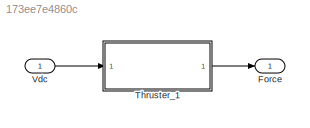
MODEL slx_173ee7e4860c
KIND model
CONFIG AbsTol = auto
CONFIG EnableMultiTasking = off
CONFIG FixedStep = auto
CONFIG MaxStep = auto
CONFIG MinStep = auto
CONFIG RelTol = 1e-3
CONFIG SampleTimeConstraint = Unconstrained
CONFIG Solver = FixedStepAuto
CONFIG SolverName = FixedStepAuto
CONFIG StartTime = 0.0
CONFIG StopTime = 10.0
BLOCK [Outport] Force
  IconDisplay = Port number
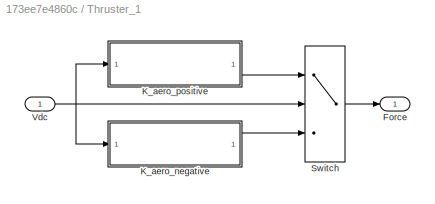
BLOCK [SubSystem] Thruster_1 
  Ports = [1, 1]
  RequestExecContextInheritance = off
BLOCK [Outport] Thruster_1 /Force
  IconDisplay = Port number
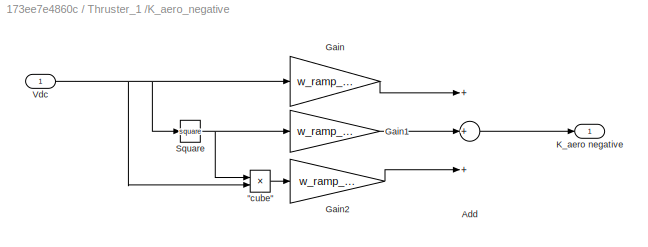
BLOCK [SubSystem] Thruster_1 /K_aero_negative
  Ports = [1, 1]
  RequestExecContextInheritance = off
BLOCK [Product] Thruster_1 /K_aero_negative/"cube"
  InputSameDT = off
  Inputs = **
  OutDataTypeStr = Inherit: Inherit via internal rule
  Ports = [2, 1]
  RndMeth = Floor
  SaturateOnIntegerOverflow = off
BLOCK [Sum] Thruster_1 /K_aero_negative/Add
  InputSameDT = off
  Inputs = +++
  OutDataTypeStr = Inherit: Inherit via internal rule
  Ports = [3, 1]
  SaturateOnIntegerOverflow = off
BLOCK [Gain] Thruster_1 /K_aero_negative/Gain
  Gain = w_ramp_1N(3)
  OutDataTypeStr = Inherit: Inherit via internal rule
  ParamDataTypeStr = Inherit: Inherit via internal rule
  SaturateOnIntegerOverflow = off
BLOCK [Gain] Thruster_1 /K_aero_negative/Gain1
  Gain = w_ramp_1N(2)
  OutDataTypeStr = Inherit: Inherit via internal rule
  ParamDataTypeStr = Inherit: Inherit via internal rule
  SaturateOnIntegerOverflow = off
BLOCK [Gain] Thruster_1 /K_aero_negative/Gain2
  Gain = w_ramp_1N(1)
  OutDataTypeStr = Inherit: Inherit via internal rule
  ParamDataTypeStr = Inherit: Inherit via internal rule
  SaturateOnIntegerOverflow = off
BLOCK [Outport] Thruster_1 /K_aero_negative/K_aero negative
  IconDisplay = Port number
BLOCK [Math] Thruster_1 /K_aero_negative/Square
  Operator = square
  Ports = [1, 1]
  SignedPower = off
BLOCK [Inport] Thruster_1 /K_aero_negative/Vdc
  IconDisplay = Port number
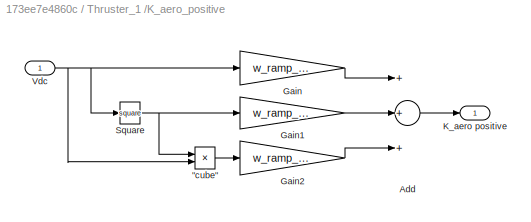
BLOCK [SubSystem] Thruster_1 /K_aero_positive
  Ports = [1, 1]
  RequestExecContextInheritance = off
BLOCK [Product] Thruster_1 /K_aero_positive/"cube"
  InputSameDT = off
  Inputs = **
  OutDataTypeStr = Inherit: Inherit via internal rule
  Ports = [2, 1]
  RndMeth = Floor
  SaturateOnIntegerOverflow = off
BLOCK [Sum] Thruster_1 /K_aero_positive/Add
  InputSameDT = off
  Inputs = +++
  OutDataTypeStr = Inherit: Inherit via internal rule
  Ports = [3, 1]
  SaturateOnIntegerOverflow = off
BLOCK [Gain] Thruster_1 /K_aero_positive/Gain
  Gain = w_ramp_1P(3)
  OutDataTypeStr = Inherit: Inherit via internal rule
  ParamDataTypeStr = Inherit: Inherit via internal rule
  SaturateOnIntegerOverflow = off
BLOCK [Gain] Thruster_1 /K_aero_positive/Gain1
  Gain = w_ramp_1P(2)
  OutDataTypeStr = Inherit: Inherit via internal rule
  ParamDataTypeStr = Inherit: Inherit via internal rule
  SaturateOnIntegerOverflow = off
BLOCK [Gain] Thruster_1 /K_aero_positive/Gain2
  Gain = w_ramp_1P(1)
  OutDataTypeStr = Inherit: Inherit via internal rule
  ParamDataTypeStr = Inherit: Inherit via internal rule
  SaturateOnIntegerOverflow = off
BLOCK [Outport] Thruster_1 /K_aero_positive/K_aero positive
  IconDisplay = Port number
BLOCK [Math] Thruster_1 /K_aero_positive/Square
  Operator = square
  Ports = [1, 1]
  SignedPower = off
BLOCK [Inport] Thruster_1 /K_aero_positive/Vdc
  IconDisplay = Port number
BLOCK [Switch] Thruster_1 /Switch
  Criteria = u2 > Threshold
  InputSameDT = off
  SaturateOnIntegerOverflow = off
BLOCK [Inport] Thruster_1 /Vdc
  IconDisplay = Port number
BLOCK [Inport] Vdc
  IconDisplay = Port number
LINE Thruster_1 /K_aero_negative/"cube":1 -> Thruster_1 /K_aero_negative/Gain2:1
LINE Thruster_1 /K_aero_negative/Add:1 -> Thruster_1 /K_aero_negative/K_aero negative:1
LINE Thruster_1 /K_aero_negative/Gain1:1 -> Thruster_1 /K_aero_negative/Add:2
LINE Thruster_1 /K_aero_negative/Gain2:1 -> Thruster_1 /K_aero_negative/Add:3
LINE Thruster_1 /K_aero_negative/Gain:1 -> Thruster_1 /K_aero_negative/Add:1
NET Thruster_1 /K_aero_negative/Square:1 -> Thruster_1 /K_aero_negative/"cube":1, Thruster_1 /K_aero_negative/Gain1:1
NET Thruster_1 /K_aero_negative/Vdc:1 -> Thruster_1 /K_aero_negative/"cube":2, Thruster_1 /K_aero_negative/Gain:1, Thruster_1 /K_aero_negative/Square:1
LINE Thruster_1 /K_aero_negative:1 -> Thruster_1 /Switch:3
LINE Thruster_1 /K_aero_positive/"cube":1 -> Thruster_1 /K_aero_positive/Gain2:1
LINE Thruster_1 /K_aero_positive/Add:1 -> Thruster_1 /K_aero_positive/K_aero positive:1
LINE Thruster_1 /K_aero_positive/Gain1:1 -> Thruster_1 /K_aero_positive/Add:2
LINE Thruster_1 /K_aero_positive/Gain2:1 -> Thruster_1 /K_aero_positive/Add:3
LINE Thruster_1 /K_aero_positive/Gain:1 -> Thruster_1 /K_aero_positive/Add:1
NET Thruster_1 /K_aero_positive/Square:1 -> Thruster_1 /K_aero_positive/"cube":1, Thruster_1 /K_aero_positive/Gain1:1
NET Thruster_1 /K_aero_positive/Vdc:1 -> Thruster_1 /K_aero_positive/"cube":2, Thruster_1 /K_aero_positive/Gain:1, Thruster_1 /K_aero_positive/Square:1
LINE Thruster_1 /K_aero_positive:1 -> Thruster_1 /Switch:1
LINE Thruster_1 /Switch:1 -> Thruster_1 /Force:1
NET Thruster_1 /Vdc:1 -> Thruster_1 /K_aero_negative:1, Thruster_1 /K_aero_positive:1, Thruster_1 /Switch:2
LINE Thruster_1 :1 -> Force:1
LINE Vdc:1 -> Thruster_1 :1
note: NET lines group one-source signal fan-out (src -> all destinations, sorted); 1:1 wires keep LINE
